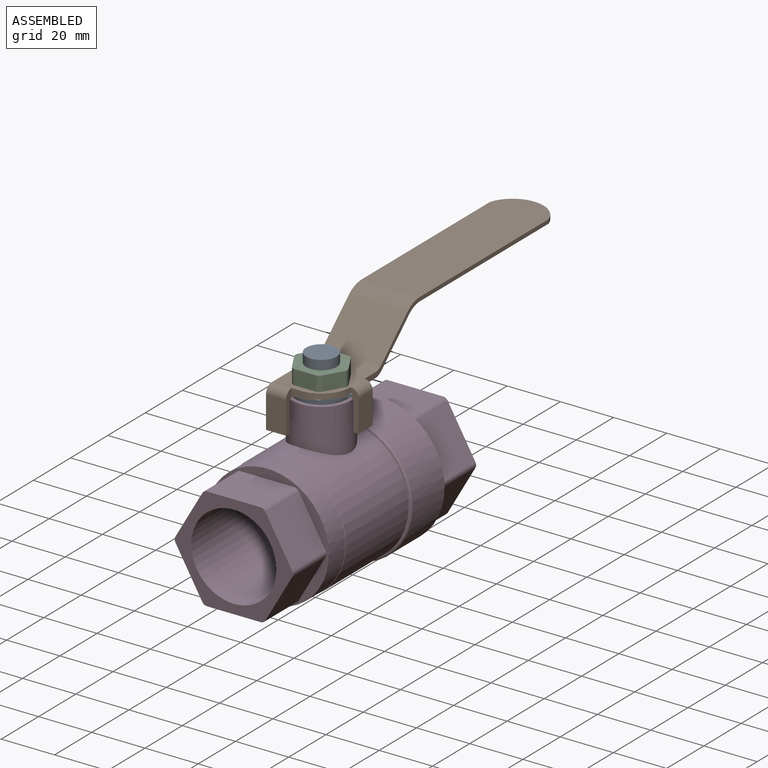
[diagram: assembled view]
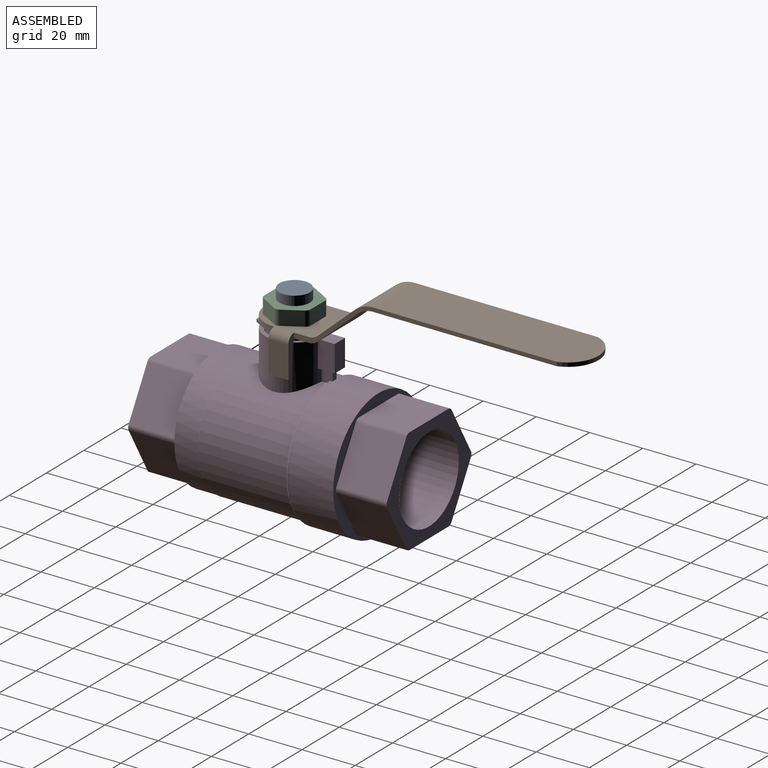
[diagram: assembled view, second angle]
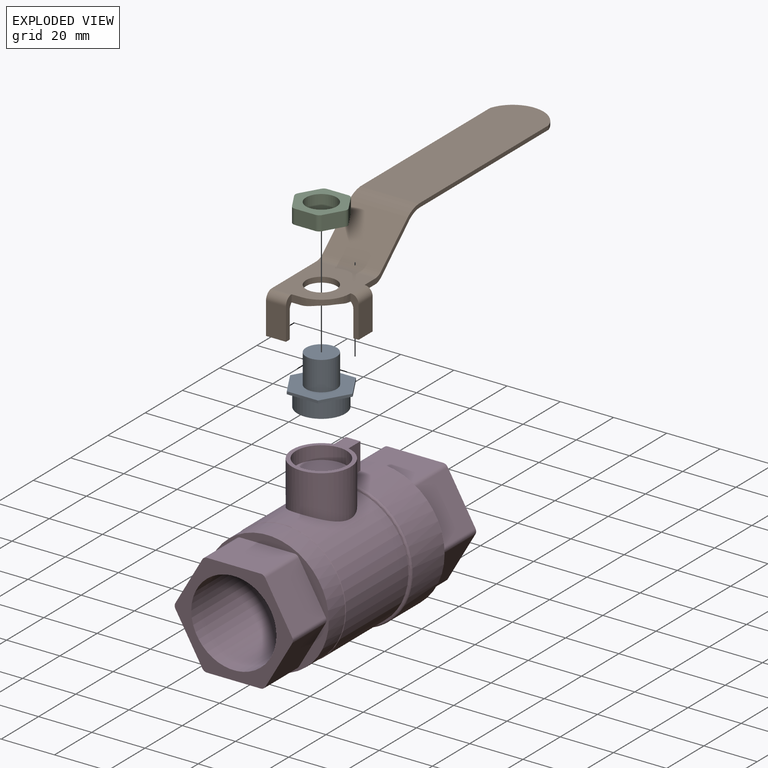
[diagram: exploded view]
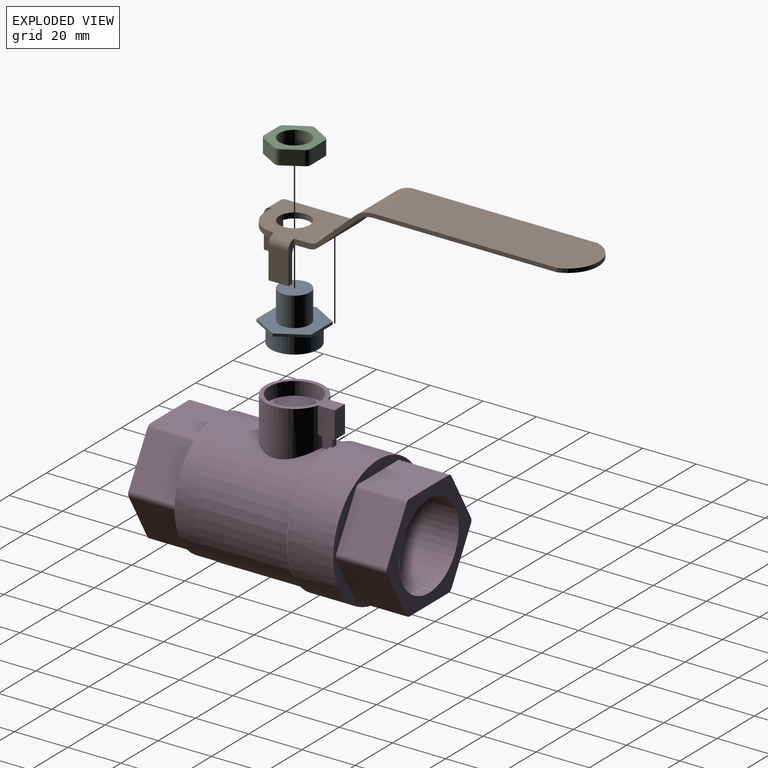
[diagram: exploded view, second angle]
ASSEMBLY  parts=4 mates=3
PART A: 12 faces, bbox 23.5x20.4x18.5 mm
  f0: cylinder r=8.98mm len=17.96mm, axis (0,0,-1), area 366.7mm2, adj f1,f9
  f1: plane 17.96x17.96mm, normal (0,0,-1), area 253.3mm2, adj f0
  f2: plane 10.18x5.88mm, normal (-0.87,0.5,0), area 11.8mm2, adj f3,f7,f8,f9
  f3: plane 10.18x5.88mm, normal (-0.87,-0.5,0), area 11.8mm2, adj f2,f4,f8,f9
  f4: plane 11.75x1mm, normal (0,-1,0), area 11.8mm2, adj f3,f5,f8,f9
  f5: plane 10.18x5.88mm, normal (0.87,-0.5,0), area 11.8mm2, adj f4,f6,f8,f9
  f6: plane 10.18x5.88mm, normal (0.87,0.5,0), area 11.8mm2, adj f5,f7,f8,f9
  f7: plane 11.75x1mm, normal (0,1,0), area 11.8mm2, adj f2,f6,f8,f9
  f8: plane 23.51x20.36mm, normal (0,0,1), area 255mm2, adj f2,f3,f4,f5,f6,f7,f10
  f9: plane 23.51x20.36mm, normal (0,0,-1), area 105.6mm2, adj f0,f2,f3,f4,f5,f6,f7
  f10: cylinder r=5.75mm len=11.5mm, axis (0,0,-1), area 397.4mm2, adj f8,f11
  f11: plane 11.5x11.5mm, normal (0,0,1), area 103.9mm2, adj f10
PART B: 31 faces, bbox 25x128.2x31.5 mm
  f0: plane 22.08x22mm, normal (0,0,-1), area 345.7mm2, adj f3,f4,f6,f7,f14,f18,f27,f29
  f1: plane 76.16x22mm, normal (0,0,1), area 1628.4mm2, adj f3,f6,f11,f15
  f2: plane 22x1.34mm, normal (0,0,-1), area 29.5mm2, adj f3,f6,f12,f16
  f3: plane 98.74x18.51mm, normal (1,0,0), area 160.6mm2, adj f0,f1,f2,f8,f9,f10,f11,f12
  f4: cylinder r=11mm len=11mm, axis (0,0,1), area 39.7mm2, adj f0,f5,f8,f19,f27,f29
  f5: plane 3.5x2.76mm, normal (0,-1,0), area 9.7mm2, adj f4,f8,f23,f27
  f6: plane 120.24x31.51mm, normal (-1,0,0), area 229.6mm2, adj f0,f1,f2,f8,f9,f10,f11,f12
  f7: cylinder r=5.75mm len=11.5mm, axis (0,0,1), area 72.3mm2, adj f0,f8
  f8: plane 24.08x22mm, normal (0,0,1), area 399.9mm2, adj f3,f4,f5,f6,f7,f13,f28,f30
  f9: plane 22x14.28mm, normal (0,-0.67,0.74), area 423.1mm2, adj f3,f6,f11,f13
  f10: plane 22x14.28mm, normal (0,0.67,-0.74), area 423.1mm2, adj f3,f6,f12,f14
  f11: cylinder r=10.76mm len=22mm, axis (-1,0,0), area 173.8mm2, adj f1,f3,f6,f9
  f12: cylinder r=9.28mm len=22mm, axis (-1,0,0), area 149.9mm2, adj f2,f3,f6,f10
  f13: cylinder r=5mm len=22mm, axis (-1,0,0), area 80.7mm2, adj f3,f6,f8,f9
  f14: cylinder r=5mm len=22mm, axis (-1,0,0), area 80.7mm2, adj f0,f3,f6,f10
  f15: cylinder r=11.57mm len=22mm, axis (0,0,1), area 43.6mm2, adj f1,f3,f6,f17
  f16: plane 22x0.02mm, normal (0,-1,0), area 0.3mm2, adj f2,f3,f6,f17
  f17: plane 76.16x22mm, normal (0,0,-1), area 1628.4mm2, adj f3,f6,f15,f16
  f18: plane 15x5mm, normal (0,1,0), area 32mm2, adj f0,f3,f20,f21,f22,f29,f30
  f19: plane 15x3mm, normal (0,-1,0), area 31.5mm2, adj f4,f20,f21,f22,f29,f30
  f20: plane 12x7.5mm, normal (1,0,0), area 90mm2, adj f18,f19,f22,f30
  f21: plane 10x7.5mm, normal (-1,0,0), area 75mm2, adj f18,f19,f22,f29
  f22: plane 7.5x2mm, normal (0,0,-1), area 15mm2, adj f18,f19,f20,f21
  f23: plane 15x3mm, normal (1,0,0), area 31.5mm2, adj f5,f24,f25,f26,f27,f28
  f24: plane 12x7.5mm, normal (0,-1,0), area 90mm2, adj f6,f23,f26,f28
  f25: plane 10x7.5mm, normal (0,1,0), area 75mm2, adj f6,f23,f26,f27
  f26: plane 7.5x2mm, normal (0,0,-1), area 15mm2, adj f6,f23,f24,f25
  f27: cylinder r=3mm len=17.32mm, axis (1,0,0), area 52.1mm2, adj f0,f4,f5,f6,f23,f25
  f28: cylinder r=3mm len=7.5mm, axis (-1,0,0), area 35.3mm2, adj f6,f8,f23,f24
  f29: cylinder r=3mm len=13.82mm, axis (0,1,0), area 44.5mm2, adj f0,f4,f18,f19,f21
  f30: cylinder r=3mm len=7.5mm, axis (0,-1,0), area 35.3mm2, adj f8,f18,f19,f20
PART C: 15 faces, bbox 19.6x17.5x5.5 mm
  f0: plane 7.79x5.5mm, normal (0,-1,0), area 42.9mm2, adj f1,f11,f13,f14
  f1: cylinder r=2mm len=5.5mm, axis (0,0,1), area 11.5mm2, adj f0,f2,f13,f14
  f2: plane 6.75x5.5mm, normal (0.87,-0.5,0), area 42.9mm2, adj f1,f3,f13,f14
  f3: cylinder r=2mm len=5.5mm, axis (0,0,1), area 11.5mm2, adj f2,f4,f13,f14
  f4: plane 6.75x5.5mm, normal (0.87,0.5,0), area 42.9mm2, adj f3,f5,f13,f14
  f5: cylinder r=2mm len=5.5mm, axis (0,0,1), area 11.5mm2, adj f4,f6,f13,f14
  f6: plane 7.79x5.5mm, normal (0,1,0), area 42.9mm2, adj f5,f7,f13,f14
  f7: cylinder r=2mm len=5.5mm, axis (0,0,1), area 11.5mm2, adj f6,f8,f13,f14
  f8: plane 6.75x5.5mm, normal (-0.87,0.5,0), area 42.9mm2, adj f7,f9,f13,f14
  f9: cylinder r=2mm len=5.5mm, axis (0,0,1), area 11.5mm2, adj f8,f10,f13,f14
  f10: plane 6.75x5.5mm, normal (-0.87,-0.5,0), area 42.9mm2, adj f9,f11,f13,f14
  f11: cylinder r=2mm len=5.5mm, axis (0,0,1), area 11.5mm2, adj f0,f10,f13,f14
  f12: cylinder r=5.75mm len=11.5mm, axis (0,0,1), area 198.7mm2, adj f13,f14
  f13: plane 19.59x17.5mm, normal (0,0,-1), area 160.1mm2, adj f0,f1,f2,f3,f4,f5,f6,f7
  f14: plane 19.59x17.5mm, normal (0,0,1), area 160.1mm2, adj f0,f1,f2,f3,f4,f5,f6,f7
PART D: 49 faces, bbox 52.5x97.5x64.3 mm
  f0: plane 2.88x1.81mm, normal (0,0,1), area 4.9mm2, adj f1,f4,f5,f40
  f1: plane 1.81x0.15mm, normal (0,-1,0), area 0.2mm2, adj f0,f3,f40
  f2: cylinder r=24.25mm len=48.5mm, axis (0,-1,0), area 2589.1mm2, adj f3,f6,f40,f41,f42
  f3: torus R=23.25mm, axis (0,1,0), area 232.4mm2, adj f1,f2,f5,f24,f40,f41
  f4: cylinder r=11mm len=22mm, axis (0,0,-1), area 1053.1mm2, adj f0,f5,f23,f39,f40,f41,f44,f45
  f5: cylinder r=23.25mm len=46.5mm, axis (0,-1,0), area 4486.9mm2, adj f0,f3,f4,f23,f38
  f6: plane 48.5x48.5mm, normal (0,1,0), area 463.1mm2, adj f2,f25,f26,f27,f28,f29,f30,f31
  f7: plane 20.21x18mm, normal (0,0,-1), area 363.7mm2, adj f8,f19,f20,f21
  f8: cylinder r=2mm len=18mm, axis (0,1,0), area 37.7mm2, adj f7,f9,f20,f21
  f9: plane 18x17.5mm, normal (0.87,0,-0.5), area 363.7mm2, adj f8,f10,f20,f21
  f10: cylinder r=2mm len=18mm, axis (0,1,0), area 37.7mm2, adj f9,f11,f20,f21
  f11: plane 18x17.5mm, normal (0.87,0,0.5), area 363.7mm2, adj f10,f12,f20,f21
  f12: cylinder r=2mm len=18mm, axis (0,1,0), area 37.7mm2, adj f11,f13,f20,f21
  f13: plane 20.21x18mm, normal (0,0,1), area 363.7mm2, adj f12,f14,f20,f21
  f14: cylinder r=2mm len=18mm, axis (0,1,0), area 37.7mm2, adj f13,f15,f20,f21
  f15: plane 18x17.5mm, normal (-0.87,0,0.5), area 363.7mm2, adj f14,f16,f20,f21
  f16: cylinder r=2mm len=18mm, axis (0,1,0), area 37.7mm2, adj f15,f17,f20,f21
  f17: plane 18x17.5mm, normal (-0.87,0,-0.5), area 363.7mm2, adj f16,f19,f20,f21
  f18: cylinder r=16mm len=97.5mm, axis (0,1,0), area 9801.8mm2, adj f20,f37
  f19: cylinder r=2mm len=18mm, axis (0,1,0), area 37.7mm2, adj f7,f17,f20,f21
  f20: plane 44.41x39mm, normal (0,-1,0), area 511.7mm2, adj f7,f8,f9,f10,f11,f12,f13,f14
  f21: plane 46.19x46.19mm, normal (0,-1,0), area 359.4mm2, adj f7,f8,f9,f10,f11,f12,f13,f14
  f22: cylinder r=23.09mm len=46.19mm, axis (0,-1,0), area 1283.1mm2, adj f21,f38
  f23: plane 2.88x1.81mm, normal (0,0,1), area 4.9mm2, adj f4,f5,f24,f41
  f24: plane 1.81x0.15mm, normal (0,-1,0), area 0.2mm2, adj f3,f23,f41
  f25: plane 20.78x19mm, normal (0,0,-1), area 394.9mm2, adj f6,f26,f36,f37
  f26: cylinder r=2mm len=19mm, axis (0,-1,0), area 39.8mm2, adj f6,f25,f27,f37
  f27: plane 19x18mm, normal (-0.87,0,-0.5), area 394.9mm2, adj f6,f26,f28,f37
  f28: cylinder r=2mm len=19mm, axis (0,-1,0), area 39.8mm2, adj f6,f27,f29,f37
  f29: plane 19x18mm, normal (-0.87,0,0.5), area 394.9mm2, adj f6,f28,f30,f37
  f30: cylinder r=2mm len=19mm, axis (0,-1,0), area 39.8mm2, adj f6,f29,f31,f37
  f31: plane 20.78x19mm, normal (0,0,1), area 394.9mm2, adj f6,f30,f32,f37
  f32: cylinder r=2mm len=19mm, axis (0,-1,0), area 39.8mm2, adj f6,f31,f33,f37
  f33: plane 19x18mm, normal (0.87,0,0.5), area 394.9mm2, adj f6,f32,f34,f37
  f34: cylinder r=2mm len=19mm, axis (0,-1,0), area 39.8mm2, adj f6,f33,f35,f37
  f35: plane 19x18mm, normal (0.87,0,-0.5), area 394.9mm2, adj f6,f34,f36,f37
  f36: cylinder r=2mm len=19mm, axis (0,-1,0), area 39.8mm2, adj f6,f25,f35,f37
  f37: plane 45.57x40mm, normal (0,1,0), area 580.1mm2, adj f18,f25,f26,f27,f28,f29,f30,f31
  f38: cone r=23.25mm half-angle=45deg, axis (0,1,0), area 32.3mm2, adj f5,f22
  f39: plane 28x22mm, normal (0,0,1), area 130.2mm2, adj f4,f43,f44,f45,f47
  f40: plane 5.02x4.09mm, normal (1,0,0), area 18.8mm2, adj f0,f1,f2,f3,f4,f42,f46
  f41: plane 5.02x4.09mm, normal (-1,0,0), area 18.8mm2, adj f2,f3,f4,f23,f24,f42,f46
  f42: plane 3.85x2.11mm, normal (0,1,0), area 8.1mm2, adj f2,f40,f41,f46
  f43: plane 10x5.5mm, normal (0,1,0), area 55mm2, adj f39,f44,f45,f46
  f44: plane 10x6.35mm, normal (-1,0,0), area 63.5mm2, adj f4,f39,f43,f46
  f45: plane 10x6.35mm, normal (1,0,0), area 63.5mm2, adj f4,f39,f43,f46
  f46: plane 6.35x5.5mm, normal (0,0,-1), area 25.1mm2, adj f4,f40,f41,f42,f43,f44,f45
  f47: cylinder r=9.5mm len=19mm, axis (0,0,1), area 298.5mm2, adj f39,f48
  f48: plane 19x19mm, normal (0,0,1), area 283.5mm2, adj f47
PLACE A t=(-16.5,-39.32,30.56)mm
PLACE B t=(-16.5,-39.32,28.06)mm
PLACE C t=(-16.5,-39.32,27.06)mm
PLACE D t=(-16.5,-39.32,30.56)mm
MATE fastened A.f0 <-> D.f4  axis (0,0,-1) through (-16.5,-10.32,63.63)mm
MATE fastened C.f12 <-> B.f4  axis (0,0,-1) through (-16.5,-10.32,73.13)mm
MATE fastened B.f4 <-> A.f10  axis (0,0,-1) through (-16.5,-10.32,71.13)mm
